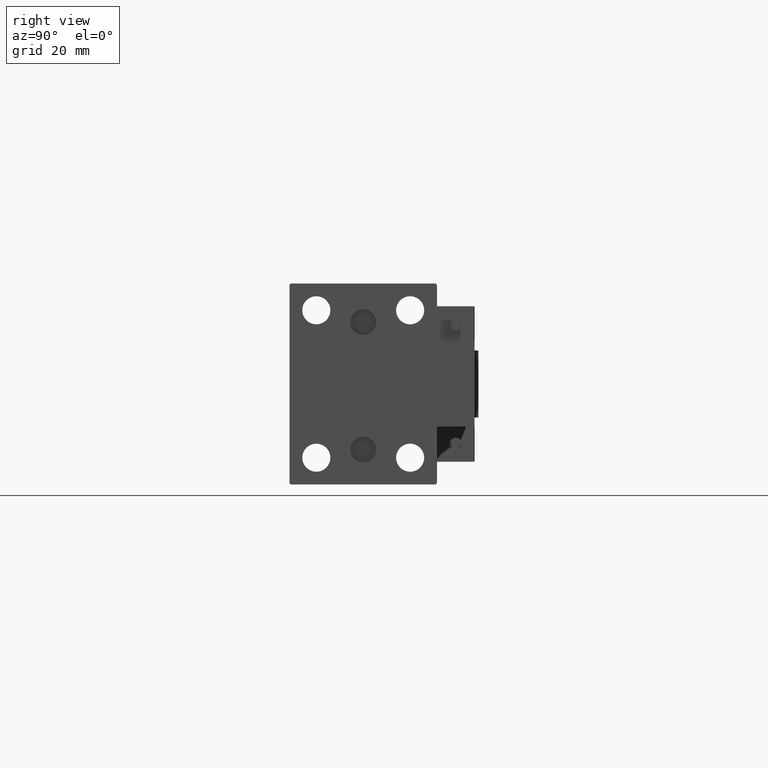
[diagram: clean part render]
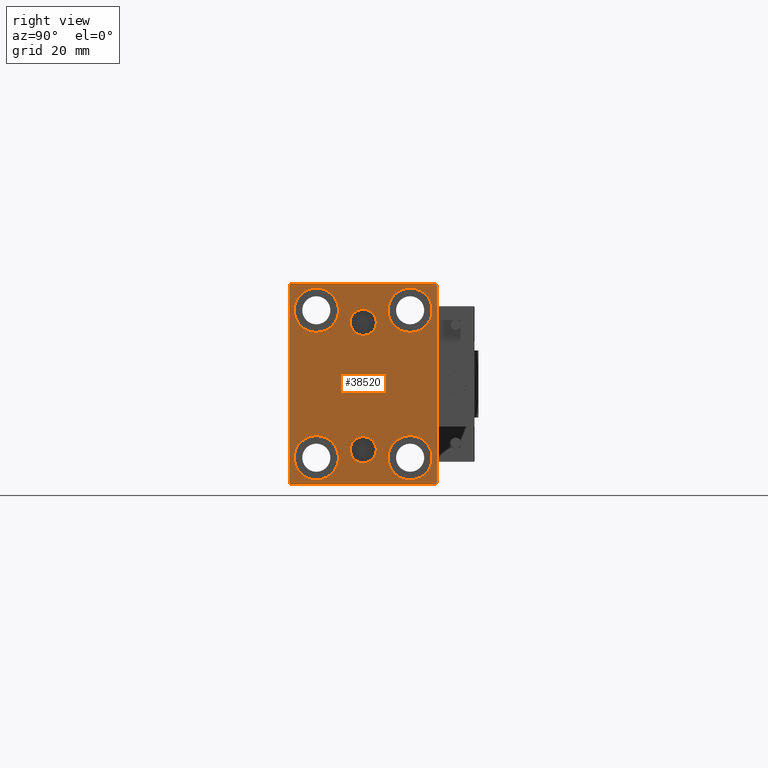
[diagram: same view with one face highlighted and labeled with its STEP entity id]
A machine part, right view. The second image highlights one B-rep face of the part: STEP entity #38520.
In plain terms, the highlighted planar face has unit normal (1, 0, 0).
Its self-contained STEP definition (entity closure, byte-faithful):
#157 = FACE_BOUND ( 'NONE', #2598, .T. ) ;
#573 = VECTOR ( 'NONE', #43784, 1000.000000000000000 ) ;
#1380 = VERTEX_POINT ( 'NONE', #12313 ) ;
#2364 = AXIS2_PLACEMENT_3D ( 'NONE', #11737, #34484, #38259 ) ;
#2598 = EDGE_LOOP ( 'NONE', ( #39196, #11178 ) ) ;
#2654 = LINE ( 'NONE', #44076, #47408 ) ;
#2789 = EDGE_CURVE ( 'NONE', #49267, #40232, #30321, .T. ) ;
#2804 = EDGE_LOOP ( 'NONE', ( #11306, #27987 ) ) ;
#3299 = ORIENTED_EDGE ( 'NONE', *, *, #35820, .T. ) ;
#3552 = EDGE_LOOP ( 'NONE', ( #26851, #26592 ) ) ;
#3775 = AXIS2_PLACEMENT_3D ( 'NONE', #28420, #12745, #43811 ) ;
#4225 = ORIENTED_EDGE ( 'NONE', *, *, #35010, .T. ) ;
#4422 = EDGE_CURVE ( 'NONE', #10134, #43663, #31183, .T. ) ;
#4594 = CARTESIAN_POINT ( 'NONE',  ( 175.0000000000000000, -32.25000000000000000, 32.25000000000000000 ) ) ;
#4825 = CARTESIAN_POINT ( 'NONE',  ( 175.0000000000000000, 17.50000000000000355, 35.74999999999999289 ) ) ;
#5331 = DIRECTION ( 'NONE',  ( 0.000000000000000000, -0.7071067811865474617, -0.7071067811865474617 ) ) ;
#5515 = EDGE_CURVE ( 'NONE', #31834, #38176, #6532, .T. ) ;
#5775 = VECTOR ( 'NONE', #5331, 1000.000000000000114 ) ;
#5824 = CARTESIAN_POINT ( 'NONE',  ( 175.0000000000000000, 3.000384657911015074E-15, -29.35999999999999233 ) ) ;
#6005 = CARTESIAN_POINT ( 'NONE',  ( 175.0000000000000000, -26.99999999999997513, -37.50000000000000000 ) ) ;
#6530 = ORIENTED_EDGE ( 'NONE', *, *, #8860, .T. ) ;
#6532 = LINE ( 'NONE', #40620, #48148 ) ;
#6552 = ORIENTED_EDGE ( 'NONE', *, *, #49795, .T. ) ;
#6865 = DIRECTION ( 'NONE',  ( -1.000000000000000000, -0.000000000000000000, -0.000000000000000000 ) ) ;
#6914 = AXIS2_PLACEMENT_3D ( 'NONE', #22998, #46735, #7591 ) ;
#7179 = CARTESIAN_POINT ( 'NONE',  ( 175.0000000000000000, -27.50000000000000355, 37.00000000000000000 ) ) ;
#7342 = VERTEX_POINT ( 'NONE', #28847 ) ;
#7406 = EDGE_CURVE ( 'NONE', #32160, #7647, #27043, .T. ) ;
#7591 = DIRECTION ( 'NONE',  ( 0.000000000000000000, 0.000000000000000000, 1.000000000000000000 ) ) ;
#7647 = VERTEX_POINT ( 'NONE', #39885 ) ;
#7843 = DIRECTION ( 'NONE',  ( 0.000000000000000000, 0.000000000000000000, 1.000000000000000000 ) ) ;
#7947 = CIRCLE ( 'NONE', #41034, 8.249999999999992895 ) ;
#8043 = EDGE_CURVE ( 'NONE', #30031, #11485, #25657, .T. ) ;
#8268 = VERTEX_POINT ( 'NONE', #12618 ) ;
#8717 = DIRECTION ( 'NONE',  ( 1.000000000000000000, 0.000000000000000000, 0.000000000000000000 ) ) ;
#8746 = EDGE_LOOP ( 'NONE', ( #35125, #6530 ) ) ;
#8860 = EDGE_CURVE ( 'NONE', #11485, #30031, #35344, .T. ) ;
#9469 = DIRECTION ( 'NONE',  ( 0.000000000000000000, 0.000000000000000000, 1.000000000000000000 ) ) ;
#9801 = VERTEX_POINT ( 'NONE', #48597 ) ;
#10134 = VERTEX_POINT ( 'NONE', #4825 ) ;
#11178 = ORIENTED_EDGE ( 'NONE', *, *, #41269, .T. ) ;
#11222 = VERTEX_POINT ( 'NONE', #7179 ) ;
#11306 = ORIENTED_EDGE ( 'NONE', *, *, #36399, .T. ) ;
#11425 = AXIS2_PLACEMENT_3D ( 'NONE', #30875, #23042, #45526 ) ;
#11485 = VERTEX_POINT ( 'NONE', #27561 ) ;
#11737 = CARTESIAN_POINT ( 'NONE',  ( 175.0000000000000000, 0.000000000000000000, 0.000000000000000000 ) ) ;
#12010 = DIRECTION ( 'NONE',  ( 0.000000000000000000, 0.000000000000000000, 1.000000000000000000 ) ) ;
#12313 = CARTESIAN_POINT ( 'NONE',  ( 175.0000000000000000, 17.49999999999999645, -19.25000000000000355 ) ) ;
#12618 = CARTESIAN_POINT ( 'NONE',  ( 175.0000000000000000, 26.99999999999999645, 37.50000000000000711 ) ) ;
#12745 = DIRECTION ( 'NONE',  ( -1.000000000000000000, -0.000000000000000000, -0.000000000000000000 ) ) ;
#13274 = CIRCLE ( 'NONE', #16526, 4.859999999999999432 ) ;
#13779 = ORIENTED_EDGE ( 'NONE', *, *, #5515, .T. ) ;
#13846 = VECTOR ( 'NONE', #25992, 1000.000000000000000 ) ;
#14364 = LINE ( 'NONE', #45184, #13846 ) ;
#14513 = DIRECTION ( 'NONE',  ( -0.000000000000000000, 0.7071067811865474617, 0.7071067811865474617 ) ) ;
#15113 = AXIS2_PLACEMENT_3D ( 'NONE', #40560, #21126, #33000 ) ;
#15731 = CARTESIAN_POINT ( 'NONE',  ( 175.0000000000000000, -17.50000000000000355, -35.75000000000000711 ) ) ;
#15790 = FACE_BOUND ( 'NONE', #8746, .T. ) ;
#16268 = CIRCLE ( 'NONE', #11425, 4.859999999999999432 ) ;
#16526 = AXIS2_PLACEMENT_3D ( 'NONE', #46949, #22551, #33655 ) ;
#16738 = VERTEX_POINT ( 'NONE', #30697 ) ;
#17009 = ORIENTED_EDGE ( 'NONE', *, *, #24734, .T. ) ;
#17177 = EDGE_CURVE ( 'NONE', #9801, #1380, #19502, .T. ) ;
#17487 = EDGE_CURVE ( 'NONE', #7647, #8268, #14364, .T. ) ;
#17628 = AXIS2_PLACEMENT_3D ( 'NONE', #23395, #31959, #12010 ) ;
#17827 = CARTESIAN_POINT ( 'NONE',  ( 175.0000000000000000, 27.50000000000000355, -37.00000000000002842 ) ) ;
#18574 = DIRECTION ( 'NONE',  ( -1.000000000000000000, -0.000000000000000000, -0.000000000000000000 ) ) ;
#18894 = CARTESIAN_POINT ( 'NONE',  ( 175.0000000000000000, 17.50000000000000355, 19.25000000000000000 ) ) ;
#19502 = CIRCLE ( 'NONE', #21924, 8.250000000000000000 ) ;
#19907 = EDGE_CURVE ( 'NONE', #40232, #49267, #13274, .T. ) ;
#21040 = CARTESIAN_POINT ( 'NONE',  ( 175.0000000000000000, -17.49999999999999645, 19.25000000000000000 ) ) ;
#21098 = DIRECTION ( 'NONE',  ( -0.000000000000000000, 0.7071067811865672237, -0.7071067811865279218 ) ) ;
#21126 = DIRECTION ( 'NONE',  ( -1.000000000000000000, -0.000000000000000000, -0.000000000000000000 ) ) ;
#21244 = DIRECTION ( 'NONE',  ( 0.000000000000000000, 0.000000000000000000, 1.000000000000000000 ) ) ;
#21612 = VECTOR ( 'NONE', #30345, 1000.000000000000000 ) ;
#21924 = AXIS2_PLACEMENT_3D ( 'NONE', #30087, #41438, #7843 ) ;
#22174 = LINE ( 'NONE', #30248, #42410 ) ;
#22341 = LINE ( 'NONE', #41279, #49031 ) ;
#22362 = EDGE_LOOP ( 'NONE', ( #30967, #17009 ) ) ;
#22551 = DIRECTION ( 'NONE',  ( 1.000000000000000000, 0.000000000000000000, -0.000000000000000000 ) ) ;
#22907 = DIRECTION ( 'NONE',  ( 0.000000000000000000, -1.000000000000000000, -1.261617073437677999E-16 ) ) ;
#22979 = CARTESIAN_POINT ( 'NONE',  ( 175.0000000000000000, 3.595563002296627957E-15, -19.63999999999999346 ) ) ;
#22998 = CARTESIAN_POINT ( 'NONE',  ( 175.0000000000000000, 3.000384657911015074E-15, -24.49999999999999289 ) ) ;
#23042 = DIRECTION ( 'NONE',  ( 1.000000000000000000, 0.000000000000000000, 0.000000000000000000 ) ) ;
#23395 = CARTESIAN_POINT ( 'NONE',  ( 175.0000000000000000, -17.49999999999999645, 27.49999999999999645 ) ) ;
#24529 = VERTEX_POINT ( 'NONE', #15731 ) ;
#24734 = EDGE_CURVE ( 'NONE', #33587, #24529, #49608, .T. ) ;
#25227 = ORIENTED_EDGE ( 'NONE', *, *, #29159, .T. ) ;
#25657 = CIRCLE ( 'NONE', #46601, 8.249999999999992895 ) ;
#25865 = AXIS2_PLACEMENT_3D ( 'NONE', #37150, #28581, #21244 ) ;
#25992 = DIRECTION ( 'NONE',  ( -0.000000000000000000, -0.7071067811865524577, 0.7071067811865426878 ) ) ;
#26592 = ORIENTED_EDGE ( 'NONE', *, *, #19907, .F. ) ;
#26851 = ORIENTED_EDGE ( 'NONE', *, *, #2789, .F. ) ;
#26890 = CARTESIAN_POINT ( 'NONE',  ( 175.0000000000000000, 17.50000000000000355, 27.49999999999999645 ) ) ;
#27043 = LINE ( 'NONE', #37660, #21612 ) ;
#27161 = FACE_BOUND ( 'NONE', #2804, .T. ) ;
#27561 = CARTESIAN_POINT ( 'NONE',  ( 175.0000000000000000, -17.49999999999999645, 35.74999999999999289 ) ) ;
#27987 = ORIENTED_EDGE ( 'NONE', *, *, #4422, .T. ) ;
#28420 = CARTESIAN_POINT ( 'NONE',  ( 175.0000000000000000, 17.50000000000000355, 27.49999999999999645 ) ) ;
#28581 = DIRECTION ( 'NONE',  ( -1.000000000000000000, -0.000000000000000000, -0.000000000000000000 ) ) ;
#28847 = CARTESIAN_POINT ( 'NONE',  ( 175.0000000000000000, -3.571693674697836683E-15, 18.14000000000000767 ) ) ;
#28998 = ORIENTED_EDGE ( 'NONE', *, *, #7406, .T. ) ;
#29146 = ORIENTED_EDGE ( 'NONE', *, *, #44355, .T. ) ;
#29159 = EDGE_CURVE ( 'NONE', #11222, #16738, #39253, .T. ) ;
#29475 = AXIS2_PLACEMENT_3D ( 'NONE', #49288, #6865, #37668 ) ;
#29522 = VERTEX_POINT ( 'NONE', #32556 ) ;
#29594 = CARTESIAN_POINT ( 'NONE',  ( 175.0000000000000000, -17.49999999999999645, 27.49999999999999645 ) ) ;
#29859 = EDGE_CURVE ( 'NONE', #24529, #33587, #46562, .T. ) ;
#30031 = VERTEX_POINT ( 'NONE', #21040 ) ;
#30087 = CARTESIAN_POINT ( 'NONE',  ( 175.0000000000000000, 17.49999999999999645, -27.50000000000000355 ) ) ;
#30248 = CARTESIAN_POINT ( 'NONE',  ( 175.0000000000000000, 27.49999999999999645, 37.50000000000000711 ) ) ;
#30286 = CARTESIAN_POINT ( 'NONE',  ( 175.0000000000000000, -3.571693674697836683E-15, 23.00000000000000711 ) ) ;
#30321 = CIRCLE ( 'NONE', #6914, 4.859999999999999432 ) ;
#30345 = DIRECTION ( 'NONE',  ( 0.000000000000000000, -9.251858538542970348E-17, 1.000000000000000000 ) ) ;
#30524 = CARTESIAN_POINT ( 'NONE',  ( 175.0000000000000000, 27.00000000000003197, -37.50000000000000000 ) ) ;
#30697 = CARTESIAN_POINT ( 'NONE',  ( 175.0000000000000000, -27.50000000000000355, -37.00000000000000000 ) ) ;
#30875 = CARTESIAN_POINT ( 'NONE',  ( 175.0000000000000000, -3.571693674697836683E-15, 23.00000000000000711 ) ) ;
#30948 = FACE_OUTER_BOUND ( 'NONE', #39697, .T. ) ;
#30967 = ORIENTED_EDGE ( 'NONE', *, *, #29859, .T. ) ;
#31183 = CIRCLE ( 'NONE', #3775, 8.249999999999992895 ) ;
#31203 = FACE_BOUND ( 'NONE', #22362, .T. ) ;
#31834 = VERTEX_POINT ( 'NONE', #6005 ) ;
#31959 = DIRECTION ( 'NONE',  ( -1.000000000000000000, -0.000000000000000000, -0.000000000000000000 ) ) ;
#32116 = LINE ( 'NONE', #4594, #5775 ) ;
#32160 = VERTEX_POINT ( 'NONE', #17827 ) ;
#32187 = CARTESIAN_POINT ( 'NONE',  ( 175.0000000000000000, -27.50000000000000355, 37.50000000000000000 ) ) ;
#32276 = CARTESIAN_POINT ( 'NONE',  ( 175.0000000000000000, -17.50000000000000355, -19.25000000000000355 ) ) ;
#32556 = CARTESIAN_POINT ( 'NONE',  ( 175.0000000000000000, -27.00000000000000355, 37.50000000000000000 ) ) ;
#32600 = ORIENTED_EDGE ( 'NONE', *, *, #43697, .F. ) ;
#33000 = DIRECTION ( 'NONE',  ( 0.000000000000000000, 0.000000000000000000, 1.000000000000000000 ) ) ;
#33587 = VERTEX_POINT ( 'NONE', #32276 ) ;
#33655 = DIRECTION ( 'NONE',  ( 0.000000000000000000, 0.000000000000000000, 1.000000000000000000 ) ) ;
#34312 = VERTEX_POINT ( 'NONE', #40900 ) ;
#34484 = DIRECTION ( 'NONE',  ( 1.000000000000000000, 0.000000000000000000, 0.000000000000000000 ) ) ;
#35010 = EDGE_CURVE ( 'NONE', #38176, #32160, #22341, .T. ) ;
#35125 = ORIENTED_EDGE ( 'NONE', *, *, #8043, .T. ) ;
#35344 = CIRCLE ( 'NONE', #17628, 8.249999999999992895 ) ;
#35820 = EDGE_CURVE ( 'NONE', #16738, #31834, #2654, .T. ) ;
#36399 = EDGE_CURVE ( 'NONE', #43663, #10134, #7947, .T. ) ;
#37150 = CARTESIAN_POINT ( 'NONE',  ( 175.0000000000000000, 17.49999999999999645, -27.50000000000000355 ) ) ;
#37199 = CIRCLE ( 'NONE', #41250, 4.859999999999999432 ) ;
#37660 = CARTESIAN_POINT ( 'NONE',  ( 175.0000000000000000, 27.50000000000000355, -37.50000000000000000 ) ) ;
#37668 = DIRECTION ( 'NONE',  ( 0.000000000000000000, 0.000000000000000000, 1.000000000000000000 ) ) ;
#38176 = VERTEX_POINT ( 'NONE', #30524 ) ;
#38259 = DIRECTION ( 'NONE',  ( 0.000000000000000000, 0.000000000000000000, -1.000000000000000000 ) ) ;
#38330 = DIRECTION ( 'NONE',  ( 0.000000000000000000, 0.000000000000000000, -1.000000000000000000 ) ) ;
#38520 = ADVANCED_FACE ( 'NONE', ( #45852, #49884, #157, #15790, #27161, #31203, #30948 ), #46346, .T. ) ;
#38838 = ORIENTED_EDGE ( 'NONE', *, *, #17487, .T. ) ;
#39196 = ORIENTED_EDGE ( 'NONE', *, *, #17177, .T. ) ;
#39253 = LINE ( 'NONE', #32187, #573 ) ;
#39697 = EDGE_LOOP ( 'NONE', ( #6552, #29146, #25227, #3299, #13779, #4225, #28998, #38838 ) ) ;
#39763 = DIRECTION ( 'NONE',  ( -1.000000000000000000, -0.000000000000000000, -0.000000000000000000 ) ) ;
#39885 = CARTESIAN_POINT ( 'NONE',  ( 175.0000000000000000, 27.49999999999999645, 37.00000000000001421 ) ) ;
#40232 = VERTEX_POINT ( 'NONE', #22979 ) ;
#40560 = CARTESIAN_POINT ( 'NONE',  ( 175.0000000000000000, -17.50000000000000355, -27.50000000000000355 ) ) ;
#40620 = CARTESIAN_POINT ( 'NONE',  ( 175.0000000000000000, -27.50000000000000355, -37.50000000000000000 ) ) ;
#40900 = CARTESIAN_POINT ( 'NONE',  ( 175.0000000000000000, -2.976515330312223406E-15, 27.86000000000000654 ) ) ;
#41034 = AXIS2_PLACEMENT_3D ( 'NONE', #26890, #18574, #45835 ) ;
#41250 = AXIS2_PLACEMENT_3D ( 'NONE', #30286, #8717, #38330 ) ;
#41269 = EDGE_CURVE ( 'NONE', #1380, #9801, #46010, .T. ) ;
#41279 = CARTESIAN_POINT ( 'NONE',  ( 175.0000000000000000, 32.25000000000001421, -32.25000000000001421 ) ) ;
#41438 = DIRECTION ( 'NONE',  ( -1.000000000000000000, -0.000000000000000000, -0.000000000000000000 ) ) ;
#42410 = VECTOR ( 'NONE', #22907, 1000.000000000000000 ) ;
#43265 = EDGE_LOOP ( 'NONE', ( #47769, #32600 ) ) ;
#43663 = VERTEX_POINT ( 'NONE', #18894 ) ;
#43697 = EDGE_CURVE ( 'NONE', #34312, #7342, #37199, .T. ) ;
#43784 = DIRECTION ( 'NONE',  ( 0.000000000000000000, 0.000000000000000000, -1.000000000000000000 ) ) ;
#43811 = DIRECTION ( 'NONE',  ( 0.000000000000000000, 0.000000000000000000, 1.000000000000000000 ) ) ;
#44076 = CARTESIAN_POINT ( 'NONE',  ( 175.0000000000000000, -32.24999999999923972, -32.25000000000103029 ) ) ;
#44252 = EDGE_CURVE ( 'NONE', #7342, #34312, #16268, .T. ) ;
#44355 = EDGE_CURVE ( 'NONE', #29522, #11222, #32116, .T. ) ;
#45184 = CARTESIAN_POINT ( 'NONE',  ( 175.0000000000000000, 32.24999999999981526, 32.25000000000025580 ) ) ;
#45526 = DIRECTION ( 'NONE',  ( 0.000000000000000000, 0.000000000000000000, -1.000000000000000000 ) ) ;
#45835 = DIRECTION ( 'NONE',  ( 0.000000000000000000, 0.000000000000000000, 1.000000000000000000 ) ) ;
#45852 = FACE_BOUND ( 'NONE', #43265, .T. ) ;
#46010 = CIRCLE ( 'NONE', #25865, 8.250000000000000000 ) ;
#46346 = PLANE ( 'NONE',  #2364 ) ;
#46562 = CIRCLE ( 'NONE', #15113, 8.250000000000000000 ) ;
#46601 = AXIS2_PLACEMENT_3D ( 'NONE', #29594, #39763, #9469 ) ;
#46735 = DIRECTION ( 'NONE',  ( 1.000000000000000000, 0.000000000000000000, -0.000000000000000000 ) ) ;
#46949 = CARTESIAN_POINT ( 'NONE',  ( 175.0000000000000000, 3.000384657911015074E-15, -24.49999999999999289 ) ) ;
#47408 = VECTOR ( 'NONE', #21098, 1000.000000000000000 ) ;
#47769 = ORIENTED_EDGE ( 'NONE', *, *, #44252, .F. ) ;
#48148 = VECTOR ( 'NONE', #49201, 1000.000000000000000 ) ;
#48597 = CARTESIAN_POINT ( 'NONE',  ( 175.0000000000000000, 17.49999999999999645, -35.75000000000000711 ) ) ;
#49031 = VECTOR ( 'NONE', #14513, 1000.000000000000114 ) ;
#49201 = DIRECTION ( 'NONE',  ( 0.000000000000000000, 1.000000000000000000, 0.000000000000000000 ) ) ;
#49267 = VERTEX_POINT ( 'NONE', #5824 ) ;
#49288 = CARTESIAN_POINT ( 'NONE',  ( 175.0000000000000000, -17.50000000000000355, -27.50000000000000355 ) ) ;
#49608 = CIRCLE ( 'NONE', #29475, 8.250000000000000000 ) ;
#49795 = EDGE_CURVE ( 'NONE', #8268, #29522, #22174, .T. ) ;
#49884 = FACE_BOUND ( 'NONE', #3552, .T. ) ;